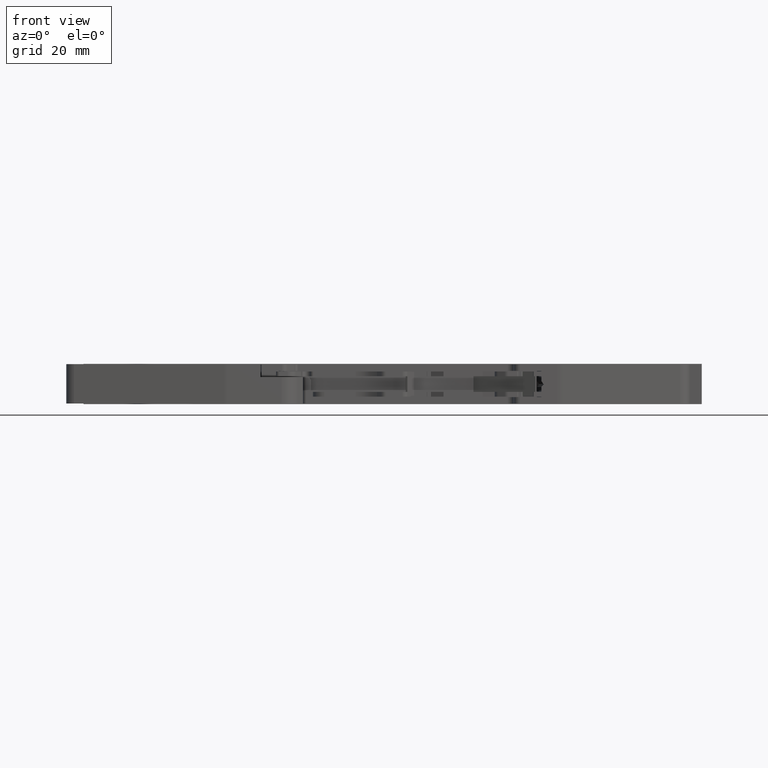
[diagram: clean part render]
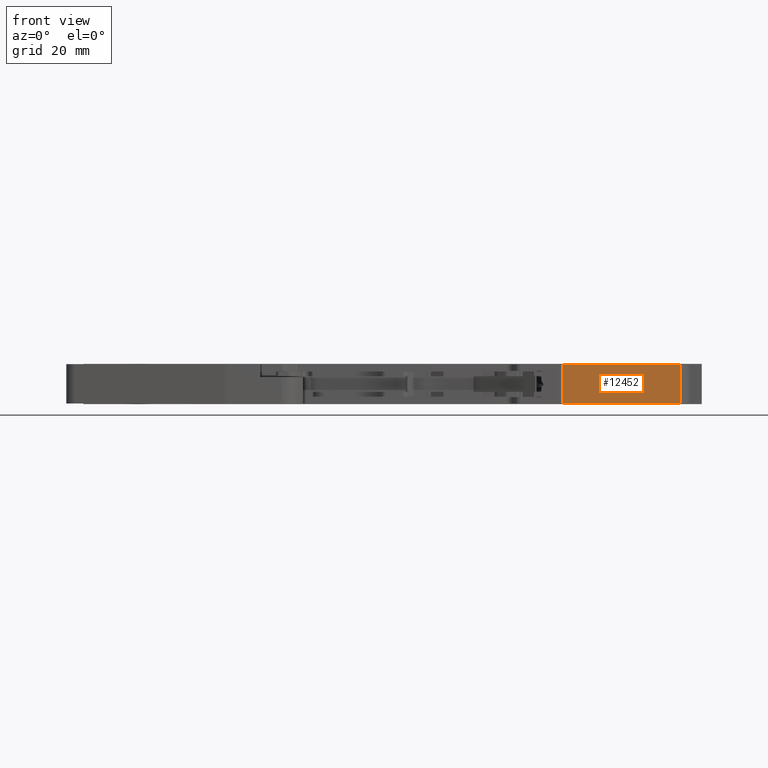
[diagram: same view with one face highlighted and labeled with its STEP entity id]
A machine part, front view. The second image highlights one B-rep face of the part: STEP entity #12452.
In plain terms, the highlighted planar face has unit normal (-0.1736, 0.9848, 0).
Its self-contained STEP definition (entity closure, byte-faithful):
#498 = LINE ( 'NONE', #547, #13503 ) ;
#528 = DIRECTION ( 'NONE',  ( 0.0000000000000000000, 0.0000000000000000000, -1.000000000000000000 ) ) ;
#547 = CARTESIAN_POINT ( 'NONE',  ( 306.5945232437428000, 8.986520480360917800, 35.49247827905775000 ) ) ;
#555 = DIRECTION ( 'NONE',  ( 0.9848077430902918400, 0.1736482339369035700, 0.0000000000000000000 ) ) ;
#583 = CARTESIAN_POINT ( 'NONE',  ( 286.9894377300924500, 5.529613790183489600, 6.155000000000002900 ) ) ;
#590 = LINE ( 'NONE', #583, #13464 ) ;
#611 = CARTESIAN_POINT ( 'NONE',  ( 306.5945232437428000, 8.986520480360912400, -0.3450000000000010300 ) ) ;
#623 = DIRECTION ( 'NONE',  ( -0.9848077430902918400, -0.1736482339369036200, 0.0000000000000000000 ) ) ;
#636 = LINE ( 'NONE', #611, #13541 ) ;
#4385 = EDGE_CURVE ( 'NONE', #18414, #18470, #8943, .T. ) ;
#5367 = CARTESIAN_POINT ( 'NONE',  ( 286.9894377300924500, 5.529613790183488800, -0.3449999999999980900 ) ) ;
#5465 = CARTESIAN_POINT ( 'NONE',  ( 286.9894377300924500, 5.529613790183489600, 6.155000000000003800 ) ) ;
#5790 = CARTESIAN_POINT ( 'NONE',  ( 306.5945232437428000, 8.986520480360910700, -0.3449999999999980900 ) ) ;
#5793 = CARTESIAN_POINT ( 'NONE',  ( 306.5945232437428000, 8.986520480360910700, 6.155000000000001100 ) ) ;
#8917 = DIRECTION ( 'NONE',  ( 0.0000000000000000000, 0.0000000000000000000, 1.000000000000000000 ) ) ;
#8943 = LINE ( 'NONE', #8946, #15381 ) ;
#8946 = CARTESIAN_POINT ( 'NONE',  ( 286.9894377300924500, 5.529613790183481600, 35.49247827905775000 ) ) ;
#11410 = DIRECTION ( 'NONE',  ( -0.9848077430902924000, -0.1736482339369004000, 0.0000000000000000000 ) ) ;
#11414 = DIRECTION ( 'NONE',  ( -0.1736482339369004300, 0.9848077430902925100, 0.0000000000000000000 ) ) ;
#11429 = FACE_OUTER_BOUND ( 'NONE', #18651, .T. ) ;
#11447 = CARTESIAN_POINT ( 'NONE',  ( 306.5945232437430300, 8.986520480360878700, 35.49247827905775000 ) ) ;
#11456 = PLANE ( 'NONE',  #13187 ) ;
#12452 = ADVANCED_FACE ( 'NONE', ( #11429 ), #11456, .F. ) ;
#13187 = AXIS2_PLACEMENT_3D ( 'NONE', #11447, #11414, #11410 ) ;
#13464 = VECTOR ( 'NONE', #555, 1000.000000000000100 ) ;
#13503 = VECTOR ( 'NONE', #528, 1000.000000000000000 ) ;
#13541 = VECTOR ( 'NONE', #623, 1000.000000000000100 ) ;
#15381 = VECTOR ( 'NONE', #8917, 1000.000000000000000 ) ;
#18414 = VERTEX_POINT ( 'NONE', #5367 ) ;
#18470 = VERTEX_POINT ( 'NONE', #5465 ) ;
#18651 = EDGE_LOOP ( 'NONE', ( #21724, #21692, #21700, #21693 ) ) ;
#18928 = VERTEX_POINT ( 'NONE', #5793 ) ;
#18942 = VERTEX_POINT ( 'NONE', #5790 ) ;
#21692 = ORIENTED_EDGE ( 'NONE', *, *, #22364, .F. ) ;
#21693 = ORIENTED_EDGE ( 'NONE', *, *, #22387, .F. ) ;
#21700 = ORIENTED_EDGE ( 'NONE', *, *, #4385, .F. ) ;
#21724 = ORIENTED_EDGE ( 'NONE', *, *, #22347, .F. ) ;
#22347 = EDGE_CURVE ( 'NONE', #18928, #18942, #498, .T. ) ;
#22364 = EDGE_CURVE ( 'NONE', #18470, #18928, #590, .T. ) ;
#22387 = EDGE_CURVE ( 'NONE', #18942, #18414, #636, .T. ) ;